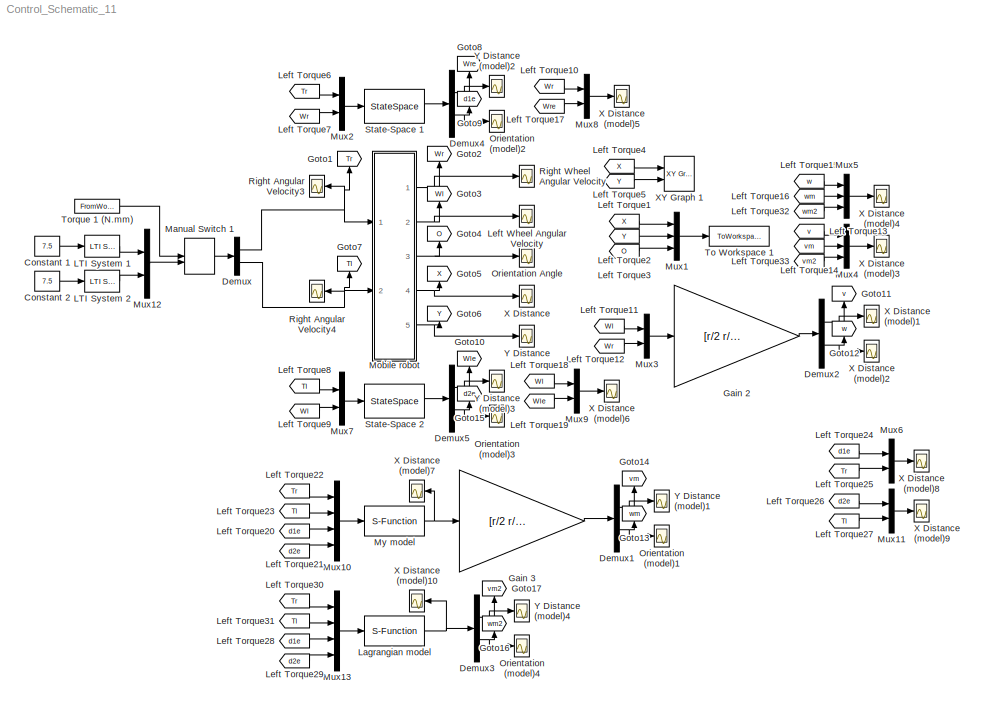
MODEL Control_Schematic_11
KIND model
BLOCK [Constant] Constant 1
  SID = 5559
  Value = 7.5
BLOCK [Constant] Constant 2
  SID = 5560
  Value = 7.5
BLOCK [Demux] Demux
  DisplayOption = bar
  Outputs = 2
  Ports = [1, 2]
  SID = 5405
BLOCK [Demux] Demux1
  DisplayOption = bar
  Outputs = 2
  Ports = [1, 2]
  SID = 5409
BLOCK [Demux] Demux2
  DisplayOption = bar
  Outputs = 2
  Ports = [1, 2]
  SID = 5445
BLOCK [Demux] Demux3
  DisplayOption = bar
  Outputs = 2
  Ports = [1, 2]
  SID = 5568
BLOCK [Demux] Demux4
  DisplayOption = bar
  Outputs = 2
  Ports = [1, 2]
  SID = 5479
BLOCK [Demux] Demux5
  DisplayOption = bar
  Outputs = 2
  Ports = [1, 2]
  SID = 5484
BLOCK [Gain] Gain 2
  Gain = [r/2 r/2;-r/b r/b]
  Multiplication = Matrix(K*u)
  OutDataTypeStr = Inherit: Inherit via internal rule
  ParamDataTypeStr = Inherit: Inherit via internal rule
  SID = 5444
  SaturateOnIntegerOverflow = off
BLOCK [Gain] Gain 3
  Gain = [r/2 r/2;-r/b r/b]
  Multiplication = Matrix(K*u)
  OutDataTypeStr = Inherit: Inherit via internal rule
  ParamDataTypeStr = Inherit: Inherit via internal rule
  SID = 5471
  SaturateOnIntegerOverflow = off
BLOCK [Goto] Goto1
  GotoTag = Tr
  SID = 5395
  TagVisibility = global
BLOCK [Goto] Goto10
  GotoTag = Wle
  SID = 5485
  TagVisibility = global
BLOCK [Goto] Goto11
  GotoTag = v
  SID = 5448
  TagVisibility = global
BLOCK [Goto] Goto12
  GotoTag = w
  SID = 5449
  TagVisibility = global
BLOCK [Goto] Goto13
  GotoTag = wm
  SID = 5450
  TagVisibility = global
BLOCK [Goto] Goto14
  GotoTag = vm
  SID = 5451
  TagVisibility = global
BLOCK [Goto] Goto15
  GotoTag = d2e
  SID = 5486
  TagVisibility = global
BLOCK [Goto] Goto16
  GotoTag = wm2
  SID = 5569
  TagVisibility = global
BLOCK [Goto] Goto17
  GotoTag = vm2
  SID = 5570
  TagVisibility = global
BLOCK [Goto] Goto2
  GotoTag = Wr
  SID = 30
  TagVisibility = global
BLOCK [Goto] Goto3
  GotoTag = Wl
  SID = 31
  TagVisibility = global
BLOCK [Goto] Goto4
  GotoTag = O
  SID = 32
  TagVisibility = global
BLOCK [Goto] Goto5
  GotoTag = X
  SID = 33
  TagVisibility = global
BLOCK [Goto] Goto6
  GotoTag = Y
  SID = 34
  TagVisibility = global
BLOCK [Goto] Goto7
  GotoTag = Tl
  SID = 5396
  TagVisibility = global
BLOCK [Goto] Goto8
  GotoTag = Wre
  SID = 5482
  TagVisibility = global
BLOCK [Goto] Goto9
  GotoTag = d1e
  SID = 5483
  TagVisibility = global
BLOCK [Reference] LTI System 1  REF=cstblocks/LTI System
  IC = []
  Ports = [1, 1]
  SID = 5553
  SourceBlock = cstblocks/LTI System
  SourceType = LTI Block
  sys = Fz
BLOCK [Reference] LTI System 2  REF=cstblocks/LTI System
  IC = []
  Ports = [1, 1]
  SID = 5555
  SourceBlock = cstblocks/LTI System
  SourceType = LTI Block
  sys = Fz
BLOCK [S-Function] Lagrangian model
  EnableBusSupport = off
  FunctionName = baqubot_2
  Parameters = par
  Ports = [1, 1]
  SID = 5566
BLOCK [From] Left Torque1
  GotoTag = X
  SID = 5391
  TagVisibility = global
BLOCK [From] Left Torque10
  GotoTag = Wr
  SID = 5493
  TagVisibility = global
BLOCK [From] Left Torque11
  GotoTag = Wl
  SID = 5441
  TagVisibility = global
BLOCK [From] Left Torque12
  GotoTag = Wr
  SID = 5442
  TagVisibility = global
BLOCK [From] Left Torque13
  GotoTag = v
  SID = 5454
  TagVisibility = global
BLOCK [From] Left Torque14
  GotoTag = vm
  SID = 5455
  TagVisibility = global
BLOCK [From] Left Torque15
  GotoTag = w
  SID = 5458
  TagVisibility = global
BLOCK [From] Left Torque16
  GotoTag = wm
  SID = 5459
  TagVisibility = global
BLOCK [From] Left Torque17
  GotoTag = Wre
  SID = 5494
  TagVisibility = global
BLOCK [From] Left Torque18
  GotoTag = Wl
  SID = 5497
  TagVisibility = global
BLOCK [From] Left Torque19
  GotoTag = Wle
  SID = 5498
  TagVisibility = global
BLOCK [From] Left Torque2
  GotoTag = Y
  SID = 5392
  TagVisibility = global
BLOCK [From] Left Torque20
  GotoTag = d1e
  SID = 5503
  TagVisibility = global
BLOCK [From] Left Torque21
  GotoTag = d2e
  SID = 5504
  TagVisibility = global
BLOCK [From] Left Torque22
  GotoTag = Tr
  SID = 5507
  TagVisibility = global
BLOCK [From] Left Torque23
  GotoTag = Tl
  SID = 5508
  TagVisibility = global
BLOCK [From] Left Torque24
  GotoTag = d1e
  SID = 5509
  TagVisibility = global
BLOCK [From] Left Torque25
  GotoTag = Tr
  SID = 5512
  TagVisibility = global
BLOCK [From] Left Torque26
  GotoTag = d2e
  SID = 5520
  TagVisibility = global
BLOCK [From] Left Torque27
  GotoTag = Tl
  SID = 5521
  TagVisibility = global
BLOCK [From] Left Torque28
  GotoTag = d1e
  SID = 5561
  TagVisibility = global
BLOCK [From] Left Torque29
  GotoTag = d2e
  SID = 5562
  TagVisibility = global
BLOCK [From] Left Torque3
  GotoTag = O
  SID = 5393
  TagVisibility = global
BLOCK [From] Left Torque30
  GotoTag = Tr
  SID = 5563
  TagVisibility = global
BLOCK [From] Left Torque31
  GotoTag = Tl
  SID = 5564
  TagVisibility = global
BLOCK [From] Left Torque32
  GotoTag = wm2
  SID = 5573
  TagVisibility = global
BLOCK [From] Left Torque33
  GotoTag = vm2
  SID = 5574
  TagVisibility = global
BLOCK [From] Left Torque4
  GotoTag = X
  SID = 5417
  TagVisibility = global
BLOCK [From] Left Torque5
  GotoTag = Y
  SID = 5418
  TagVisibility = global
BLOCK [From] Left Torque6
  GotoTag = Tr
  SID = 5477
  TagVisibility = global
BLOCK [From] Left Torque7
  GotoTag = Wr
  SID = 5478
  TagVisibility = global
BLOCK [From] Left Torque8
  GotoTag = Tl
  SID = 5487
  TagVisibility = global
BLOCK [From] Left Torque9
  GotoTag = Wl
  SID = 5488
  TagVisibility = global
BLOCK [Scope] Left Wheel Angular Velocity
  Floating = off
  LimitDataPoints = off
  NumInputPorts = 1
  Ports = [1]
  SID = 2
  SaveName = ScopeData2
  ShowLegends = off
  YMax = 1
  YMin = -1
BLOCK [ManualSwitch] Manual Switch 1
  SID = 5533
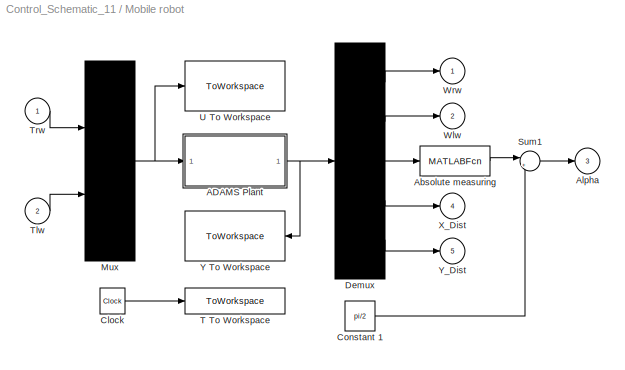
BLOCK [SubSystem] Mobile robot
  Ports = [2, 5]
  RequestExecContextInheritance = off
  SID = 4919
  ShowPortLabels = none
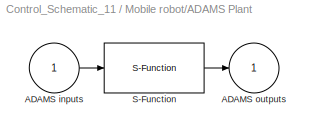
BLOCK [SubSystem] Mobile robot/ADAMS Plant
  InitFcn = clear mex
  LoadFcn = %check based on dialog box setting for when setting by popup menu                                             \nif exist('ADAMS_solver_type')                                                                                 \n  if strcmp(ADAMS_solver_type,'C++')                                                                          \n    set_param(gcb,'exetyp','C++');                              ...<+3523ch>
  OpenFcn = open_system(gcb,'mask')                                                                                                                          \nif not(exist('set_some_params_states'))                                                                                                          \n                                                                                                          ...<+634ch>
  Ports = [1, 1]
  RequestExecContextInheritance = off
  SID = 4922
BLOCK [Inport] Mobile robot/ADAMS Plant/ADAMS inputs
  IconDisplay = Port number
  SID = 4923
BLOCK [Outport] Mobile robot/ADAMS Plant/ADAMS outputs
  IconDisplay = Port number
  InitialOutput = 0
  SID = 4925
BLOCK [S-Function] Mobile robot/ADAMS Plant/S-Function
  EnableBusSupport = off
  FunctionName = adams_plant
  Parameters = exevie,exesol,stat,outfil,nampre,o_rate,nam_in,namout,dft,modsim,modani,dt_out,inicmd,exetyp,comtyp,ada_host, workdir,pin_interp_order,pout_extrap_order,pin_extrap_order,pout_interp_order,simulink_lead_cosim
  Ports = [1, 1]
  SID = 4924
  StopFcn = clear mex
BLOCK [MATLABFcn] Mobile robot/Absolute measuring
  MATLABFcn = Beta_Correction(u)
  Ports = [1, 1]
  SID = 5390
BLOCK [Outport] Mobile robot/Alpha
  IconDisplay = Port number
  Port = 3
  SID = 4934
BLOCK [Clock] Mobile robot/Clock
  SID = 4926
BLOCK [Constant] Mobile robot/Constant 1
  SID = 5401
  Value = pi/2
BLOCK [Demux] Mobile robot/Demux
  Outputs = 5
  Ports = [1, 5]
  SID = 4927
BLOCK [Mux] Mobile robot/Mux
  Inputs = 2
  Ports = [2, 1]
  SID = 4928
BLOCK [Sum] Mobile robot/Sum1
  IconShape = round
  InputSameDT = off
  Inputs = |++
  OutDataTypeStr = Inherit: Inherit via internal rule
  Ports = [2, 1]
  SID = 5406
  SaturateOnIntegerOverflow = off
BLOCK [ToWorkspace] Mobile robot/T To Workspace
  MaxDataPoints = 100000
  Ports = [1]
  SID = 4929
  VariableName = ADAMS_tout
BLOCK [Inport] Mobile robot/Tlw
  IconDisplay = Port number
  Port = 2
  SID = 4921
BLOCK [Inport] Mobile robot/Trw
  IconDisplay = Port number
  SID = 4920
BLOCK [ToWorkspace] Mobile robot/U To Workspace
  MaxDataPoints = 100000
  Ports = [1]
  SID = 4930
  VariableName = ADAMS_uout
BLOCK [Outport] Mobile robot/Wlw
  IconDisplay = Port number
  Port = 2
  SID = 4933
BLOCK [Outport] Mobile robot/Wrw
  IconDisplay = Port number
  SID = 4932
BLOCK [Outport] Mobile robot/X_Dist
  IconDisplay = Port number
  Port = 4
  SID = 4935
BLOCK [ToWorkspace] Mobile robot/Y To Workspace
  MaxDataPoints = 100000
  Ports = [1]
  SID = 4931
  VariableName = ADAMS_yout
BLOCK [Outport] Mobile robot/Y_Dist
  IconDisplay = Port number
  Port = 5
  SID = 4936
BLOCK [Mux] Mux1
  DisplayOption = bar
  Inputs = 3
  Ports = [3, 1]
  SID = 5394
BLOCK [Mux] Mux10
  DisplayOption = bar
  Ports = [4, 1]
  SID = 5505
BLOCK [Mux] Mux11
  DisplayOption = bar
  Inputs = 2
  Ports = [2, 1]
  SID = 5522
BLOCK [Mux] Mux12
  DisplayOption = bar
  Inputs = 2
  Ports = [2, 1]
  SID = 5558
BLOCK [Mux] Mux13
  DisplayOption = bar
  Ports = [4, 1]
  SID = 5565
BLOCK [Mux] Mux2
  DisplayOption = bar
  Inputs = 2
  Ports = [2, 1]
  SID = 5476
BLOCK [Mux] Mux3
  DisplayOption = bar
  Inputs = 2
  Ports = [2, 1]
  SID = 5443
BLOCK [Mux] Mux4
  DisplayOption = bar
  Inputs = 3
  Ports = [3, 1]
  SID = 5456
BLOCK [Mux] Mux5
  DisplayOption = bar
  Inputs = 3
  Ports = [3, 1]
  SID = 5460
BLOCK [Mux] Mux6
  DisplayOption = bar
  Inputs = 2
  Ports = [2, 1]
  SID = 5513
BLOCK [Mux] Mux7
  DisplayOption = bar
  Inputs = 2
  Ports = [2, 1]
  SID = 5489
BLOCK [Mux] Mux8
  DisplayOption = bar
  Inputs = 2
  Ports = [2, 1]
  SID = 5495
BLOCK [Mux] Mux9
  DisplayOption = bar
  Inputs = 2
  Ports = [2, 1]
  SID = 5499
BLOCK [S-Function] My model
  EnableBusSupport = off
  FunctionName = baqubot_1
  Parameters = par
  Ports = [1, 1]
  SID = 5407
BLOCK [Scope] Orientation (model)1
  Floating = off
  LimitDataPoints = off
  NumInputPorts = 1
  Ports = [1]
  SID = 5452
  SaveName = ScopeData12
  ShowLegends = off
  YMax = 1.64934
  YMin = 1.49226
  ZoomMode = yonly
BLOCK [Scope] Orientation (model)2
  Floating = off
  LimitDataPoints = off
  NumInputPorts = 1
  Ports = [1]
  SID = 5481
  SaveName = ScopeData6
  ShowLegends = off
  YMax = 15
  YMin = -15
  ZoomMode = yonly
BLOCK [Scope] Orientation (model)3
  Floating = off
  LimitDataPoints = off
  NumInputPorts = 1
  Ports = [1]
  SID = 5490
  SaveName = ScopeData9
  ShowLegends = off
  YMax = 15
  YMin = -15
  ZoomMode = yonly
BLOCK [Scope] Orientation (model)4
  Floating = off
  LimitDataPoints = off
  NumInputPorts = 1
  Ports = [1]
  SID = 5571
  SaveName = ScopeData23
  ShowLegends = off
  YMax = 1.64934
  YMin = 1.49226
  ZoomMode = yonly
BLOCK [Scope] Orientation Angle
  Floating = off
  LimitDataPoints = off
  NumInputPorts = 1
  Ports = [1]
  SID = 1
  SaveName = ScopeData1
  ShowLegends = off
  YMax = 4
  YMin = -4
BLOCK [Scope] Right Angular Velocity3
  Floating = off
  LimitDataPoints = off
  NumInputPorts = 1
  Ports = [1]
  SID = 269
  SaveName = ScopeData7
  ShowLegends = off
  YMax = 5.5
  YMin = -1.5
BLOCK [Scope] Right Angular Velocity4
  Floating = off
  LimitDataPoints = off
  NumInputPorts = 1
  Ports = [1]
  SID = 270
  SaveName = ScopeData8
  ShowLegends = off
  YMax = 25
  YMin = -25
  ZoomMode = xonly
BLOCK [Scope] Right Wheel Angular Velocity
  Floating = off
  LimitDataPoints = off
  NumInputPorts = 1
  Ports = [1]
  SID = 3
  SaveName = ScopeData3
  ShowLegends = off
  YMax = 1
  YMin = -1
  ZoomMode = yonly
BLOCK [StateSpace] State-Space 1
  A = Aob
  B = Bob
  C = Cob
  D = Dob
  Ports = [1, 1]
  SID = 5475
  X0 = 0
BLOCK [StateSpace] State-Space 2
  A = Aob
  B = Bob
  C = Cob
  D = Dob
  Ports = [1, 1]
  SID = 5491
  X0 = 0
BLOCK [ToWorkspace] To Workspace 1
  FixptAsFi = on
  MaxDataPoints = inf
  Ports = [1]
  SID = 2059
  SampleTime = -1
  Save2DSignal = 3-D array (concatenate along third dimension)
  SaveFormat = Structure With Time
  VariableName = Output_1
BLOCK [FromWorkspace] Torque 1 (N.mm)
  Interpolate = off
  OutputAfterFinalValue = Holding final value
  SID = 5524
  SampleTime = Ts
  VariableName = T
  ZeroCross = on
BLOCK [Scope] X Distance
  Floating = off
  LimitDataPoints = off
  NumInputPorts = 1
  Ports = [1]
  SID = 4
  SaveName = ScopeData4
  ShowLegends = off
  YMax = 5000
  YMin = 0
  ZoomMode = yonly
BLOCK [Scope] X Distance (model)1
  Floating = off
  LimitDataPoints = off
  NumInputPorts = 1
  Ports = [1]
  SID = 5446
  SaveName = ScopeData10
  ShowLegends = off
  YMax = 5000
  YMin = 0
  ZoomMode = yonly
BLOCK [Scope] X Distance (model)10
  Floating = off
  LimitDataPoints = off
  NumInputPorts = 1
  Ports = [1]
  SID = 5567
  SaveName = ScopeData22
  ShowLegends = off
  YMax = 5000
  YMin = 0
  ZoomMode = xonly
BLOCK [Scope] X Distance (model)2
  Floating = off
  LimitDataPoints = off
  NumInputPorts = 1
  Ports = [1]
  SID = 5447
  SaveName = ScopeData11
  ShowLegends = off
  YMax = 5000
  YMin = 0
  ZoomMode = yonly
BLOCK [Scope] X Distance (model)3
  Floating = off
  LimitDataPoints = off
  NumInputPorts = 1
  Ports = [1]
  SID = 5457
  SaveName = ScopeData14
  ShowLegends = off
  YMax = 800
  YMin = 0
  ZoomMode = yonly
BLOCK [Scope] X Distance (model)4
  Floating = off
  LimitDataPoints = off
  NumInputPorts = 1
  Ports = [1]
  SID = 5461
  SaveName = ScopeData15
  ShowLegends = off
  YMax = 5000
  YMin = 0
  ZoomMode = yonly
BLOCK [Scope] X Distance (model)5
  Floating = off
  LimitDataPoints = off
  NumInputPorts = 1
  Ports = [1]
  SID = 5496
  SaveName = ScopeData17
  ShowLegends = off
  YMax = 5000
  YMin = 0
  ZoomMode = xonly
BLOCK [Scope] X Distance (model)6
  Floating = off
  LimitDataPoints = off
  NumInputPorts = 1
  Ports = [1]
  SID = 5500
  SaveName = ScopeData18
  ShowLegends = off
  YMax = 5000
  YMin = 0
  ZoomMode = xonly
BLOCK [Scope] X Distance (model)7
  Floating = off
  LimitDataPoints = off
  NumInputPorts = 1
  Ports = [1]
  SID = 5506
  SaveName = ScopeData19
  ShowLegends = off
  YMax = 5000
  YMin = 0
  ZoomMode = xonly
BLOCK [Scope] X Distance (model)8
  Floating = off
  LimitDataPoints = off
  NumInputPorts = 1
  Ports = [1]
  SID = 5511
  SaveName = ScopeData20
  ShowLegends = off
  TimeRange = 35
  YMax = 20
  YMin = -20
  ZoomMode = yonly
BLOCK [Scope] X Distance (model)9
  Floating = off
  LimitDataPoints = off
  NumInputPorts = 1
  Ports = [1]
  SID = 5523
  SaveName = ScopeData21
  ShowLegends = off
  YMax = 15
  YMin = -15
  ZoomMode = yonly
BLOCK [Reference] XY Graph 1  REF=simulink/Sinks/XY Graph
  Ports = [2]
  SID = 5419
  SourceBlock = simulink/Sinks/XY Graph
  SourceType = XY scope.
  st = -1
  xmax = 5000
  xmin = 0
  ymax = 5000
  ymin = 0
BLOCK [Scope] Y Distance
  Floating = off
  LimitDataPoints = off
  NumInputPorts = 1
  Ports = [1]
  SID = 5
  ShowLegends = off
  YMax = 5000
  YMin = 0
  ZoomMode = yonly
BLOCK [Scope] Y Distance (model)1
  Floating = off
  LimitDataPoints = off
  NumInputPorts = 1
  Ports = [1]
  SID = 5453
  SaveName = ScopeData13
  ShowLegends = off
  YMax = 5000
  YMin = 0
  ZoomMode = yonly
BLOCK [Scope] Y Distance (model)2
  Floating = off
  LimitDataPoints = off
  NumInputPorts = 1
  Ports = [1]
  SID = 5480
  SaveName = ScopeData5
  ShowLegends = off
  YMax = 5000
  YMin = 0
  ZoomMode = yonly
BLOCK [Scope] Y Distance (model)3
  Floating = off
  LimitDataPoints = off
  NumInputPorts = 1
  Ports = [1]
  SID = 5492
  SaveName = ScopeData16
  ShowLegends = off
  YMax = 5000
  YMin = 0
  ZoomMode = yonly
BLOCK [Scope] Y Distance (model)4
  Floating = off
  LimitDataPoints = off
  NumInputPorts = 1
  Ports = [1]
  SID = 5572
  SaveName = ScopeData24
  ShowLegends = off
  YMax = 5000
  YMin = 0
  ZoomMode = yonly
LINE Constant 1:1 -> LTI System 1:1
LINE Constant 2:1 -> LTI System 2:1
NET Demux1:1 -> Goto14:1, Y Distance (model)1:1
NET Demux1:2 -> Goto13:1, Orientation (model)1:1
NET Demux2:1 -> Goto11:1, X Distance (model)1:1
NET Demux2:2 -> Goto12:1, X Distance (model)2:1
NET Demux3:1 -> Goto17:1, Y Distance (model)4:1
NET Demux3:2 -> Goto16:1, Orientation (model)4:1
NET Demux4:1 -> Goto8:1, Y Distance (model)2:1
NET Demux4:2 -> Goto9:1, Orientation (model)2:1
NET Demux5:1 -> Goto10:1, Y Distance (model)3:1
NET Demux5:2 -> Goto15:1, Orientation (model)3:1
NET Demux:1 -> Goto1:1, Mobile robot:1, Right Angular Velocity3:1
NET Demux:2 -> Goto7:1, Mobile robot:2, Right Angular Velocity4:1
LINE Gain 2:1 -> Demux2:1
LINE Gain 3:1 -> Demux1:1
LINE LTI System 1:1 -> Mux12:1
LINE LTI System 2:1 -> Mux12:2
NET Lagrangian model:1 -> Demux3:1, X Distance (model)10:1
LINE Left Torque10:1 -> Mux8:1
LINE Left Torque11:1 -> Mux3:1
LINE Left Torque12:1 -> Mux3:2
LINE Left Torque13:1 -> Mux4:1
LINE Left Torque14:1 -> Mux4:2
LINE Left Torque15:1 -> Mux5:1
LINE Left Torque16:1 -> Mux5:2
LINE Left Torque17:1 -> Mux8:2
LINE Left Torque18:1 -> Mux9:1
LINE Left Torque19:1 -> Mux9:2
LINE Left Torque1:1 -> Mux1:1
LINE Left Torque20:1 -> Mux10:3
LINE Left Torque21:1 -> Mux10:4
LINE Left Torque22:1 -> Mux10:1
LINE Left Torque23:1 -> Mux10:2
LINE Left Torque24:1 -> Mux6:1
LINE Left Torque25:1 -> Mux6:2
LINE Left Torque26:1 -> Mux11:1
LINE Left Torque27:1 -> Mux11:2
LINE Left Torque28:1 -> Mux13:3
LINE Left Torque29:1 -> Mux13:4
LINE Left Torque2:1 -> Mux1:2
LINE Left Torque30:1 -> Mux13:1
LINE Left Torque31:1 -> Mux13:2
LINE Left Torque32:1 -> Mux5:3
LINE Left Torque33:1 -> Mux4:3
LINE Left Torque3:1 -> Mux1:3
LINE Left Torque4:1 -> XY Graph 1:1
LINE Left Torque5:1 -> XY Graph 1:2
LINE Left Torque6:1 -> Mux2:1
LINE Left Torque7:1 -> Mux2:2
LINE Left Torque8:1 -> Mux7:1
LINE Left Torque9:1 -> Mux7:2
LINE Manual Switch 1:1 -> Demux:1
LINE Mobile robot/ADAMS Plant/ADAMS inputs:1 -> Mobile robot/ADAMS Plant/S-Function:1
LINE Mobile robot/ADAMS Plant/S-Function:1 -> Mobile robot/ADAMS Plant/ADAMS outputs:1
NET Mobile robot/ADAMS Plant:1 -> Mobile robot/Demux:1, Mobile robot/Y To Workspace:1
LINE Mobile robot/Absolute measuring:1 -> Mobile robot/Sum1:1
LINE Mobile robot/Clock:1 -> Mobile robot/T To Workspace:1
LINE Mobile robot/Constant 1:1 -> Mobile robot/Sum1:2
LINE Mobile robot/Demux:1 -> Mobile robot/Wrw:1
LINE Mobile robot/Demux:2 -> Mobile robot/Wlw:1
LINE Mobile robot/Demux:3 -> Mobile robot/Absolute measuring:1
LINE Mobile robot/Demux:4 -> Mobile robot/X_Dist:1
LINE Mobile robot/Demux:5 -> Mobile robot/Y_Dist:1
NET Mobile robot/Mux:1 -> Mobile robot/ADAMS Plant:1, Mobile robot/U To Workspace:1
LINE Mobile robot/Sum1:1 -> Mobile robot/Alpha:1
LINE Mobile robot/Tlw:1 -> Mobile robot/Mux:2
LINE Mobile robot/Trw:1 -> Mobile robot/Mux:1
NET Mobile robot:1 -> Goto2:1, Right Wheel Angular Velocity:1
NET Mobile robot:2 -> Goto3:1, Left Wheel Angular Velocity:1
NET Mobile robot:3 -> Goto4:1, Orientation Angle:1
NET Mobile robot:4 -> Goto5:1, X Distance:1
NET Mobile robot:5 -> Goto6:1, Y Distance:1
LINE Mux10:1 -> My model:1
LINE Mux11:1 -> X Distance (model)9:1
LINE Mux12:1 -> Manual Switch 1:2
LINE Mux13:1 -> Lagrangian model:1
LINE Mux1:1 -> To Workspace 1:1
LINE Mux2:1 -> State-Space 1:1
LINE Mux3:1 -> Gain 2:1
LINE Mux4:1 -> X Distance (model)3:1
LINE Mux5:1 -> X Distance (model)4:1
LINE Mux6:1 -> X Distance (model)8:1
LINE Mux7:1 -> State-Space 2:1
LINE Mux8:1 -> X Distance (model)5:1
LINE Mux9:1 -> X Distance (model)6:1
NET My model:1 -> Gain 3:1, X Distance (model)7:1
LINE State-Space 1:1 -> Demux4:1
LINE State-Space 2:1 -> Demux5:1
LINE Torque 1 (N.mm):1 -> Manual Switch 1:1
note: NET lines group one-source signal fan-out (src -> all destinations, sorted); 1:1 wires keep LINE
